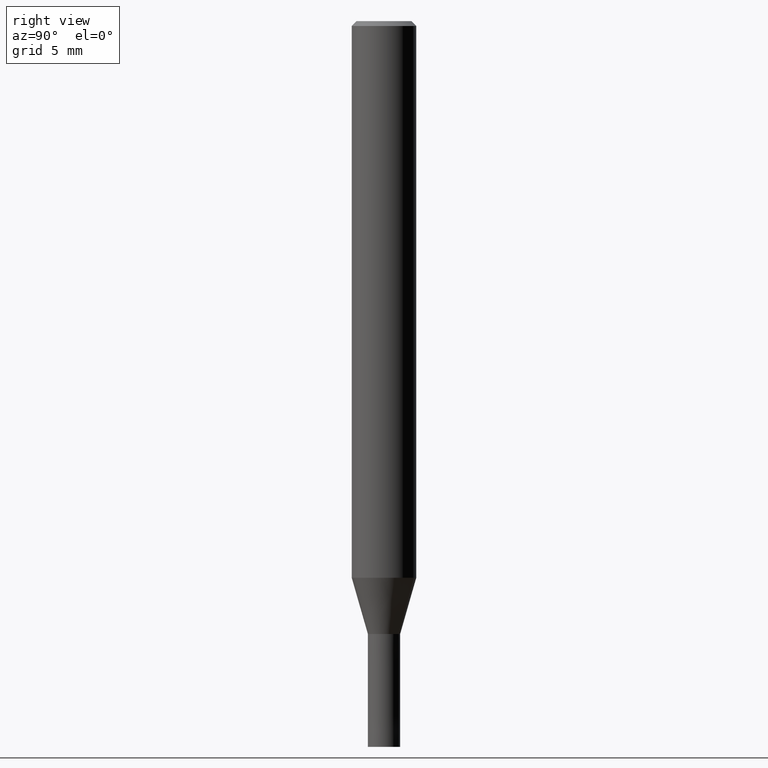
[diagram: clean part render]
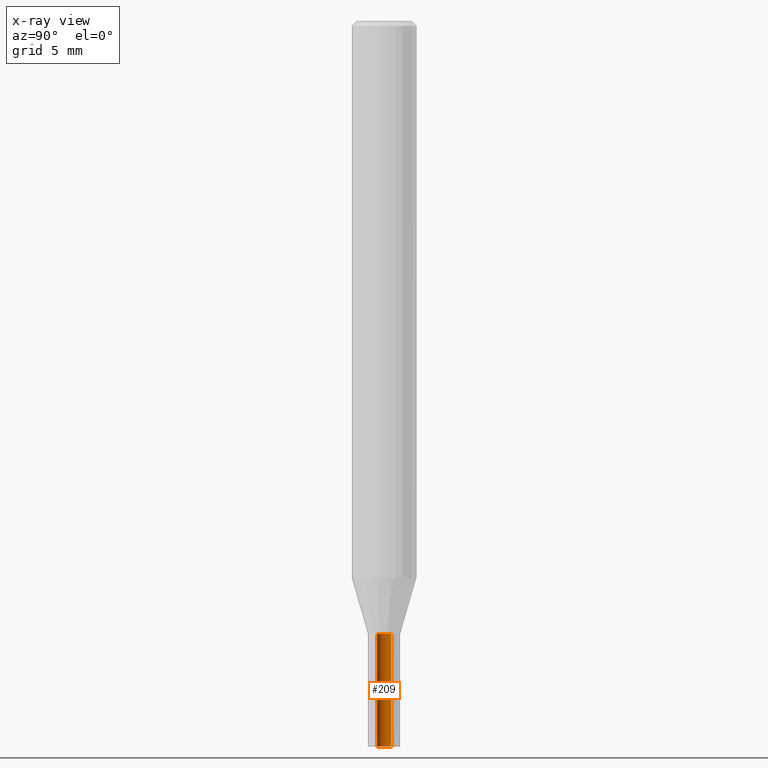
[diagram: x-ray — body ghosted, one internal face saturated and labeled with its STEP entity id]
A machine part, right view, then the same camera in x-ray: the body is ghosted and one INTERNAL B-rep face — a face not visible from any outside direction — is saturated and labeled: STEP entity #209.
In plain terms, the highlighted cylindrical surface (edge-blend (fillet) strip) has radius 0.45 mm, axis along (-0, -0, 1).
Its self-contained STEP definition (entity closure, byte-faithful):
#153=EDGE_CURVE('',#191,#161,#333,.T.);
#161=VERTEX_POINT('',#343);
#163=EDGE_CURVE('',#249,#237,#345,.T.);
#167=EDGE_CURVE('',#249,#191,#350,.T.);
#191=VERTEX_POINT('',#377);
#209=ADVANCED_FACE('',(#396),#397,.F.);
#231=EDGE_CURVE('',#161,#237,#422,.T.);
#237=VERTEX_POINT('',#428);
#249=VERTEX_POINT('',#441);
#333=CIRCLE('',#529,0.45);
#343=CARTESIAN_POINT('',(0.0,0.45,-38.0));
#345=CIRCLE('',#544,0.45);
#350=LINE('',#550,#551);
#377=CARTESIAN_POINT('',(5.5107285922007E-017,-0.45,-38.0));
#396=FACE_OUTER_BOUND('',#609,.T.);
#397=CYLINDRICAL_SURFACE('',#610,0.45);
#422=LINE('',#642,#643);
#428=CARTESIAN_POINT('',(0.0,0.45,-45.0));
#441=CARTESIAN_POINT('',(5.5107285922007E-017,-0.45,-45.0));
#529=AXIS2_PLACEMENT_3D('',#767,#768,#769);
#544=AXIS2_PLACEMENT_3D('',#779,#780,#781);
#550=CARTESIAN_POINT('',(5.5107285922007E-017,-0.45,-41.5));
#551=VECTOR('',#788,1.0);
#609=EDGE_LOOP('',(#839,#840,#841,#842));
#610=AXIS2_PLACEMENT_3D('',#843,#844,#845);
#642=CARTESIAN_POINT('',(-5.5107285922007E-017,0.45,-41.5));
#643=VECTOR('',#874,1.0);
#767=CARTESIAN_POINT('',(0.0,0.0,-38.0));
#768=DIRECTION('',(0.0,0.0,-1.0));
#769=DIRECTION('',(0.0,1.0,0.0));
#779=CARTESIAN_POINT('',(0.0,0.0,-45.0));
#780=DIRECTION('',(0.0,0.0,-1.0));
#781=DIRECTION('',(0.0,1.0,0.0));
#788=DIRECTION('',(0.0,-0.0,1.0));
#839=ORIENTED_EDGE('',*,*,#231,.F.);
#840=ORIENTED_EDGE('',*,*,#153,.F.);
#841=ORIENTED_EDGE('',*,*,#167,.F.);
#842=ORIENTED_EDGE('',*,*,#163,.T.);
#843=CARTESIAN_POINT('',(0.0,0.0,-41.5));
#844=DIRECTION('',(-0.0,-0.0,1.0));
#845=DIRECTION('',(0.0,1.0,0.0));
#874=DIRECTION('',(0.0,-0.0,-1.0));